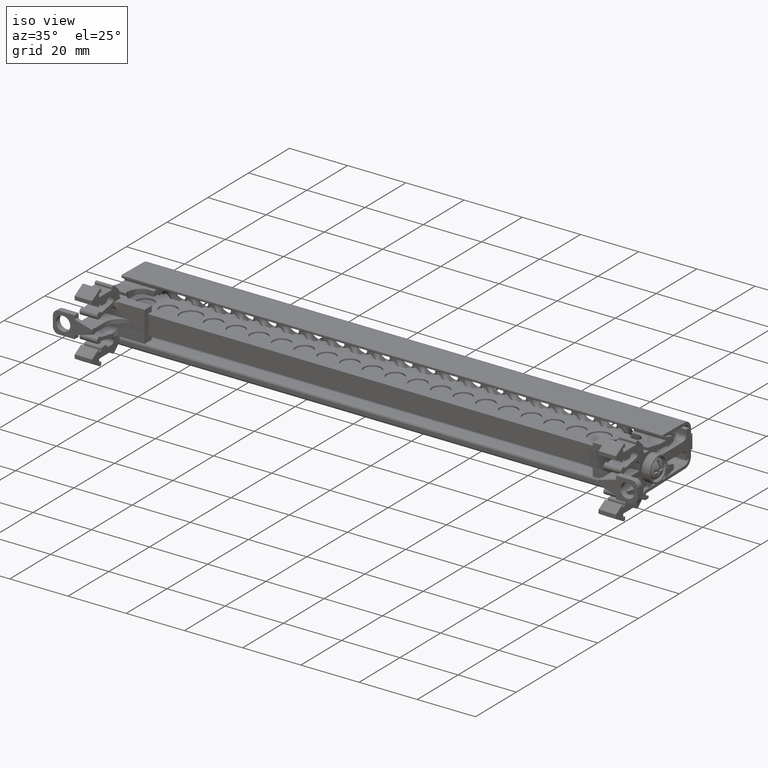
[diagram: clean part render]
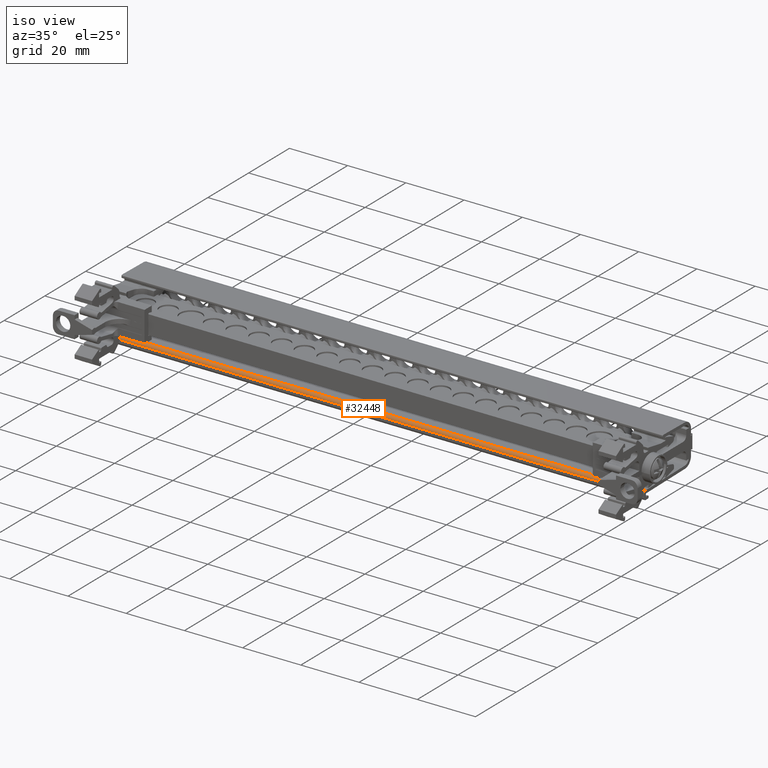
[diagram: same view with one face highlighted and labeled with its STEP entity id]
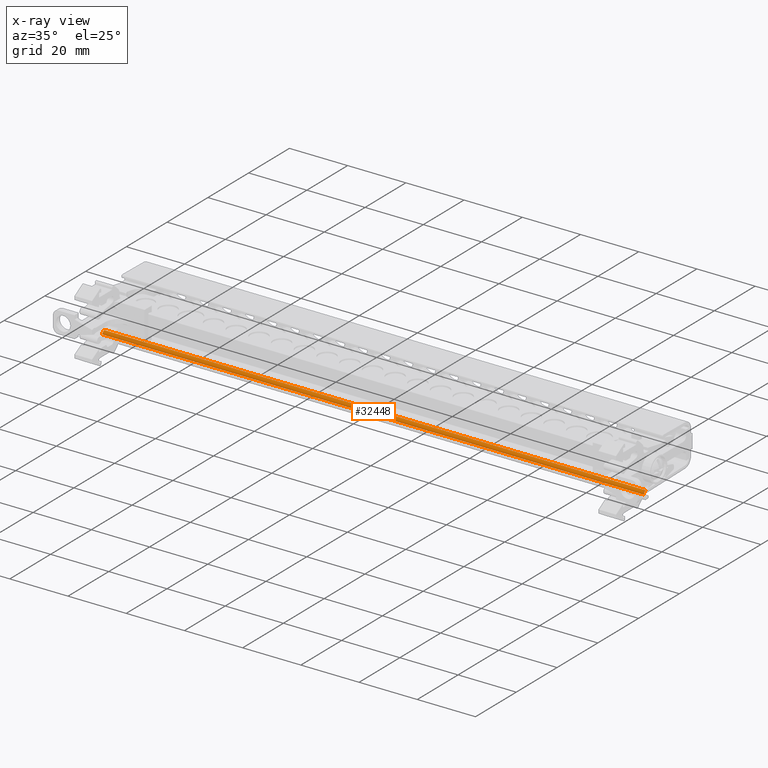
[diagram: x-ray of the same camera — body ghosted, the highlighted face saturated]
A machine part, iso view. The second image highlights one B-rep face of the part: STEP entity #32448.
The next image is the same camera in x-ray: the body ghosted, the highlighted face saturated — about 0% of this face is hidden behind the body in this view.
In plain terms, the highlighted cylindrical surface (edge-blend (fillet) strip) has radius 0.9996 mm, axis along (-1, -0, -0).
Its self-contained STEP definition (entity closure, byte-faithful):
#1279 = AXIS2_PLACEMENT_3D ( 'NONE', #12201, #12184, #12208 ) ;
#9173 = EDGE_CURVE ( 'NONE', #13171, #12971, #30832, .T. ) ;
#9407 = EDGE_CURVE ( 'NONE', #13171, #13115, #22062, .T. ) ;
#9500 = EDGE_CURVE ( 'NONE', #13215, #13115, #20356, .T. ) ;
#9513 = EDGE_CURVE ( 'NONE', #12971, #13215, #22114, .T. ) ;
#11323 = ORIENTED_EDGE ( 'NONE', *, *, #9500, .T. ) ;
#11326 = ORIENTED_EDGE ( 'NONE', *, *, #9513, .T. ) ;
#11328 = ORIENTED_EDGE ( 'NONE', *, *, #9407, .F. ) ;
#12184 = DIRECTION ( 'NONE',  ( -1.000000000000000000, -1.123605221868005200E-014, -2.470852055923969000E-015 ) ) ;
#12201 = CARTESIAN_POINT ( 'NONE',  ( 24.19289896002510100, -43.98956651627235500, 88.46097687400691700 ) ) ;
#12208 = DIRECTION ( 'NONE',  ( 1.041228490326238200E-014, -1.000000000000000000, 4.164913961304952800E-014 ) ) ;
#12226 = FACE_OUTER_BOUND ( 'NONE', #39064, .T. ) ;
#12233 = CYLINDRICAL_SURFACE ( 'NONE', #1279, 0.9996212121125974700 ) ;
#12971 = VERTEX_POINT ( 'NONE', #19915 ) ;
#13115 = VERTEX_POINT ( 'NONE', #45601 ) ;
#13171 = VERTEX_POINT ( 'NONE', #45610 ) ;
#13215 = VERTEX_POINT ( 'NONE', #45691 ) ;
#13407 = ORIENTED_EDGE ( 'NONE', *, *, #9173, .T. ) ;
#19915 = CARTESIAN_POINT ( 'NONE',  ( -82.71658967541759500, -44.00701231195398600, 89.46044583896683400 ) ) ;
#20336 = DIRECTION ( 'NONE',  ( 1.000000000000000000, 1.123605221868005200E-014, 2.470852055923969000E-015 ) ) ;
#20356 = LINE ( 'NONE', #20365, #22155 ) ;
#20365 = CARTESIAN_POINT ( 'NONE',  ( -61.57460103923610000, -44.98918772838596400, 88.46097687400714400 ) ) ;
#20374 = DIRECTION ( 'NONE',  ( 1.000000000000000000, 1.123605221868000100E-014, 2.470852055923969000E-015 ) ) ;
#20384 = DIRECTION ( 'NONE',  ( -1.388304653768317800E-014, 1.000000000000000000, -4.164913961304952800E-014 ) ) ;
#20415 = CARTESIAN_POINT ( 'NONE',  ( -82.71658967541759500, -43.98956651627361200, 88.46097687400688900 ) ) ;
#22021 = AXIS2_PLACEMENT_3D ( 'NONE', #37333, #37290, #37326 ) ;
#22062 = CIRCLE ( 'NONE', #22021, 0.9996212121125974700 ) ;
#22114 = CIRCLE ( 'NONE', #22184, 0.9996212121125974700 ) ;
#22155 = VECTOR ( 'NONE', #20336, 1000.000000000000000 ) ;
#22168 = VECTOR ( 'NONE', #30858, 1000.000000000000000 ) ;
#22184 = AXIS2_PLACEMENT_3D ( 'NONE', #20415, #20374, #20384 ) ;
#30827 = CARTESIAN_POINT ( 'NONE',  ( -44.78096467574441400, -44.00701231195358800, 89.46044583896720300 ) ) ;
#30832 = LINE ( 'NONE', #30827, #22168 ) ;
#30858 = DIRECTION ( 'NONE',  ( -1.000000000000000000, -1.123605221868005200E-014, -2.470852055923969000E-015 ) ) ;
#32448 = ADVANCED_FACE ( 'NONE', ( #12226 ), #12233, .T. ) ;
#37290 = DIRECTION ( 'NONE',  ( 1.000000000000000000, 1.123605221868026300E-014, 1.643677741129682900E-014 ) ) ;
#37326 = DIRECTION ( 'NONE',  ( -1.388304653768317800E-014, 1.000000000000000000, -4.164913961304952800E-014 ) ) ;
#37333 = CARTESIAN_POINT ( 'NONE',  ( 103.2844330507417800, -43.98956651627236900, 88.46097687400863700 ) ) ;
#39064 = EDGE_LOOP ( 'NONE', ( #11323, #11328, #13407, #11326 ) ) ;
#45601 = CARTESIAN_POINT ( 'NONE',  ( 103.2844330507417800, -44.98918772838496200, 88.46097687400867900 ) ) ;
#45610 = CARTESIAN_POINT ( 'NONE',  ( 103.2844330507417800, -44.00701231195275700, 89.46044583896858200 ) ) ;
#45691 = CARTESIAN_POINT ( 'NONE',  ( -82.71658967541759500, -44.98918772838615600, 88.46097687400694600 ) ) ;